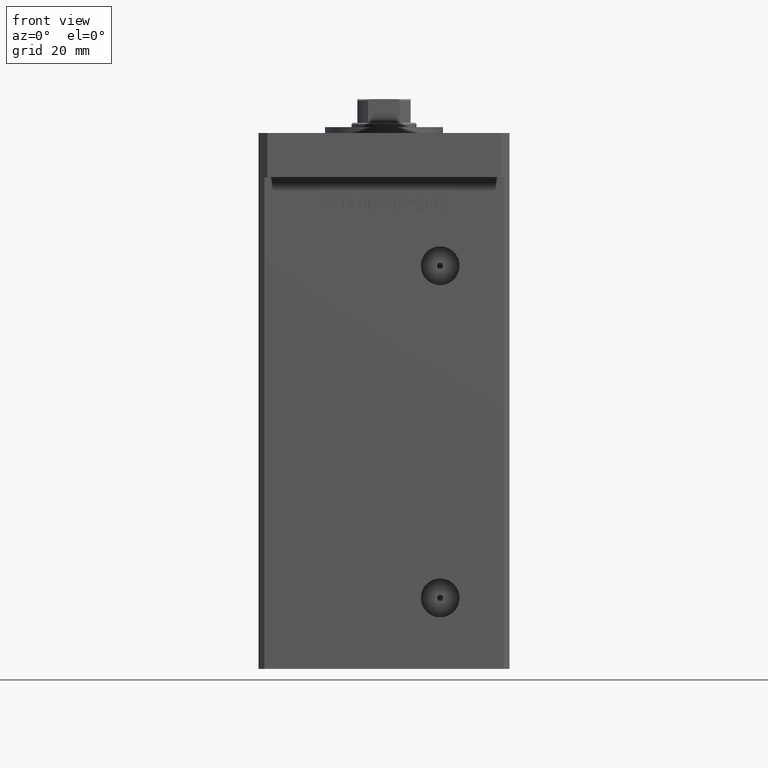
[diagram: clean part render]
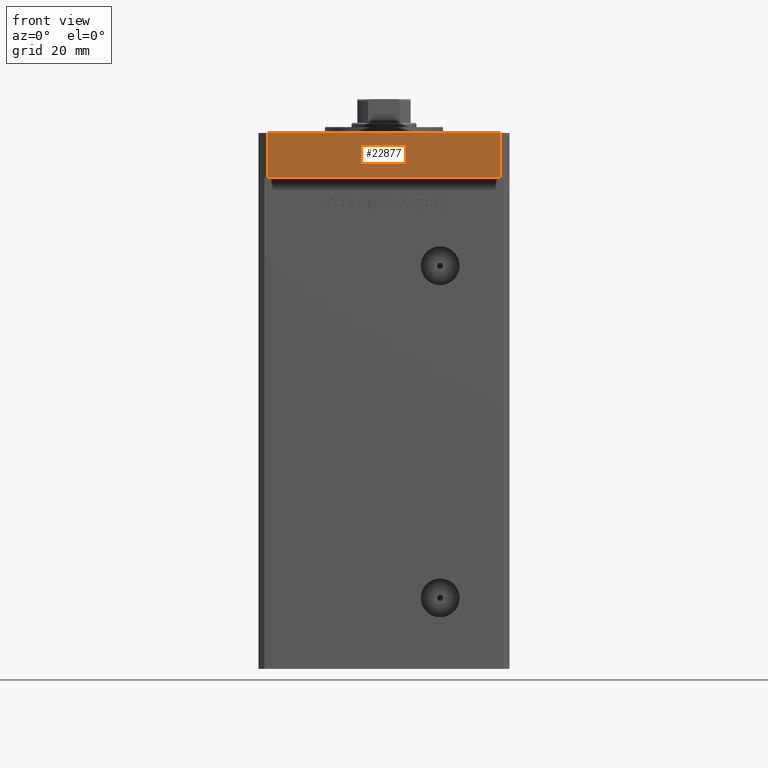
[diagram: same view with one face highlighted and labeled with its STEP entity id]
A machine part, front view. The second image highlights one B-rep face of the part: STEP entity #22877.
In plain terms, the highlighted planar face has unit normal (-0, 1, 0).
Its self-contained STEP definition (entity closure, byte-faithful):
#1956 = VECTOR ( 'NONE', #7442, 1000.000000000000000 ) ;
#3645 = EDGE_LOOP ( 'NONE', ( #3745, #42794, #26212, #12687 ) ) ;
#3745 = ORIENTED_EDGE ( 'NONE', *, *, #38524, .T. ) ;
#4355 = VECTOR ( 'NONE', #26494, 1000.000000000000000 ) ;
#4744 = VERTEX_POINT ( 'NONE', #22831 ) ;
#5415 = EDGE_CURVE ( 'NONE', #26680, #49200, #9986, .T. ) ;
#7442 = DIRECTION ( 'NONE',  ( 1.000000000000000000, 1.405345600791337191E-15, 0.000000000000000000 ) ) ;
#9691 = CARTESIAN_POINT ( 'NONE',  ( -39.50000000000000000, -65.00000000000000000, 0.000000000000000000 ) ) ;
#9986 = LINE ( 'NONE', #21889, #4355 ) ;
#12258 = PLANE ( 'NONE',  #30989 ) ;
#12687 = ORIENTED_EDGE ( 'NONE', *, *, #5415, .T. ) ;
#13335 = DIRECTION ( 'NONE',  ( -1.000000000000000000, -1.405345600791337191E-15, 0.000000000000000000 ) ) ;
#15574 = CARTESIAN_POINT ( 'NONE',  ( -39.50000000000000000, -65.00000000000000000, 15.00000000000000000 ) ) ;
#17516 = CARTESIAN_POINT ( 'NONE',  ( 39.50000000000001421, -64.99999999999988631, 15.00000000000000000 ) ) ;
#21302 = DIRECTION ( 'NONE',  ( -0.000000000000000000, -0.000000000000000000, -1.000000000000000000 ) ) ;
#21889 = CARTESIAN_POINT ( 'NONE',  ( -39.50000000000000000, -65.00000000000000000, 15.00000000000000000 ) ) ;
#22831 = CARTESIAN_POINT ( 'NONE',  ( 39.50000000000001421, -64.99999999999988631, 15.00000000000000000 ) ) ;
#22877 = ADVANCED_FACE ( 'NONE', ( #49385 ), #12258, .F. ) ;
#25667 = CARTESIAN_POINT ( 'NONE',  ( -39.50000000000000000, -65.00000000000000000, 15.00000000000000000 ) ) ;
#26212 = ORIENTED_EDGE ( 'NONE', *, *, #40362, .F. ) ;
#26494 = DIRECTION ( 'NONE',  ( -0.000000000000000000, -0.000000000000000000, -1.000000000000000000 ) ) ;
#26680 = VERTEX_POINT ( 'NONE', #25667 ) ;
#28555 = LINE ( 'NONE', #15574, #1956 ) ;
#28782 = CARTESIAN_POINT ( 'NONE',  ( -39.50000000000000000, -65.00000000000000000, 15.00000000000000000 ) ) ;
#28904 = LINE ( 'NONE', #17516, #35827 ) ;
#30989 = AXIS2_PLACEMENT_3D ( 'NONE', #28782, #45304, #13335 ) ;
#35827 = VECTOR ( 'NONE', #21302, 1000.000000000000000 ) ;
#36520 = VECTOR ( 'NONE', #42455, 1000.000000000000000 ) ;
#38524 = EDGE_CURVE ( 'NONE', #49200, #48524, #47616, .T. ) ;
#40362 = EDGE_CURVE ( 'NONE', #26680, #4744, #28555, .T. ) ;
#42455 = DIRECTION ( 'NONE',  ( 1.000000000000000000, 1.405345600791337191E-15, 0.000000000000000000 ) ) ;
#42794 = ORIENTED_EDGE ( 'NONE', *, *, #48061, .F. ) ;
#43905 = CARTESIAN_POINT ( 'NONE',  ( 39.50000000000001421, -64.99999999999988631, 0.000000000000000000 ) ) ;
#45304 = DIRECTION ( 'NONE',  ( -1.405345600791337191E-15, 1.000000000000000000, 0.000000000000000000 ) ) ;
#46928 = CARTESIAN_POINT ( 'NONE',  ( -39.50000000000000000, -65.00000000000000000, 0.000000000000000000 ) ) ;
#47616 = LINE ( 'NONE', #9691, #36520 ) ;
#48061 = EDGE_CURVE ( 'NONE', #4744, #48524, #28904, .T. ) ;
#48524 = VERTEX_POINT ( 'NONE', #43905 ) ;
#49200 = VERTEX_POINT ( 'NONE', #46928 ) ;
#49385 = FACE_OUTER_BOUND ( 'NONE', #3645, .T. ) ;